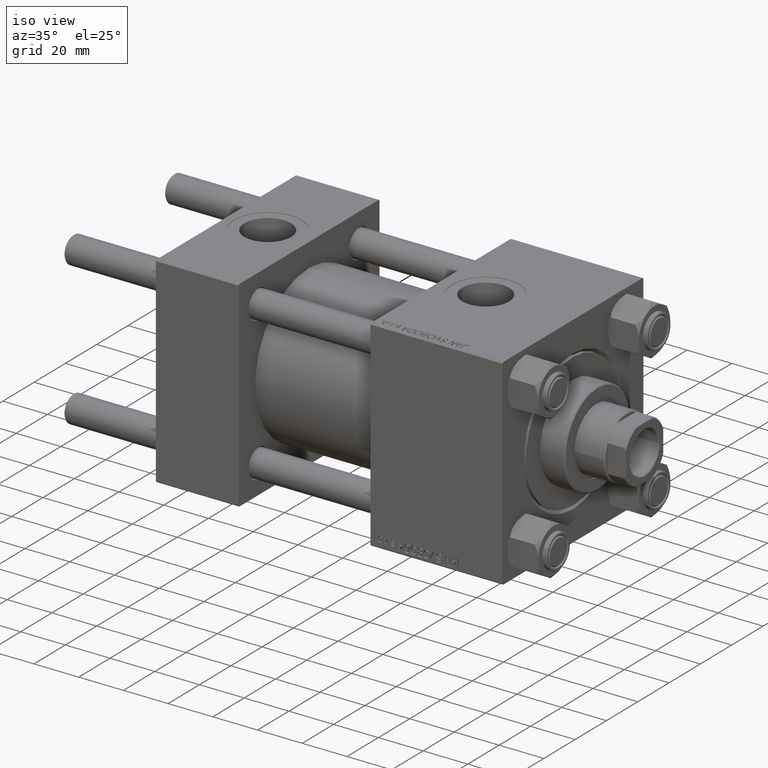
[diagram: clean part render]
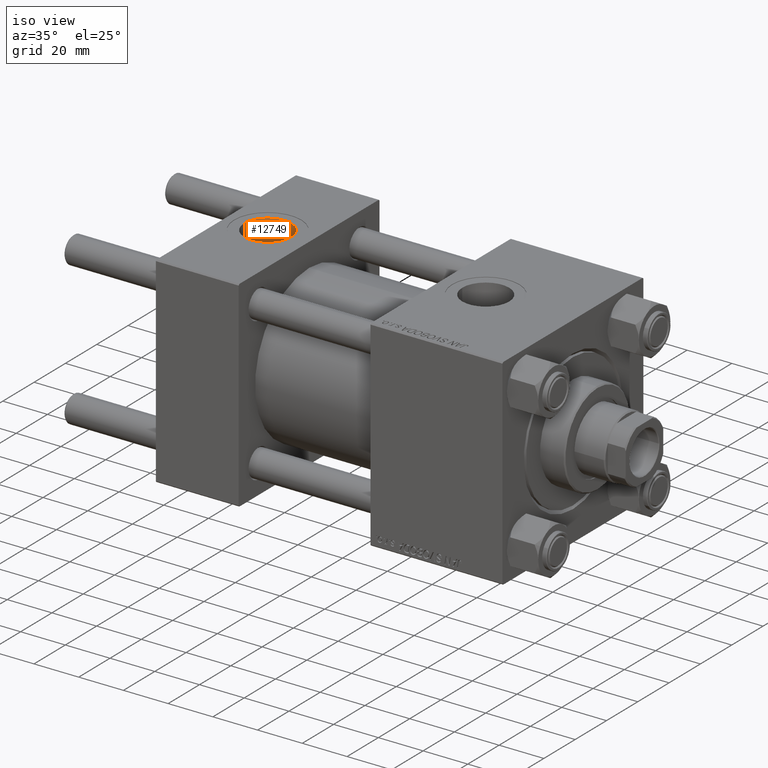
[diagram: same view with one face highlighted and labeled with its STEP entity id]
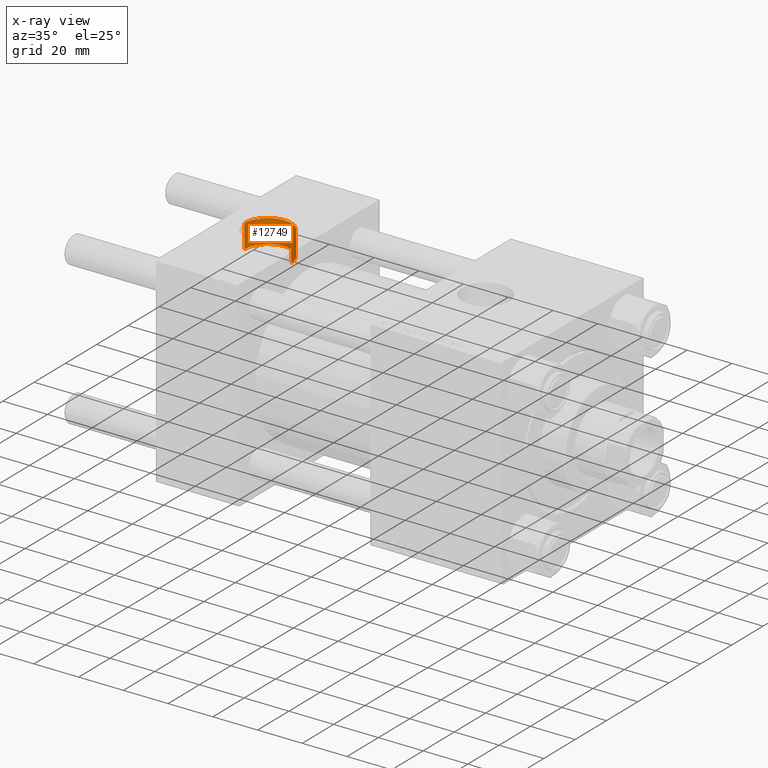
[diagram: x-ray of the same camera — body ghosted, the highlighted face saturated]
A machine part, iso view. The second image highlights one B-rep face of the part: STEP entity #12749.
The next image is the same camera in x-ray: the body ghosted, the highlighted face saturated — about 0% of this face is hidden behind the body in this view.
In plain terms, the highlighted cylindrical surface (edge-blend (fillet) strip) has radius 10.48 mm, axis along (0, 0, 1).
Its self-contained STEP definition (entity closure, byte-faithful):
#894 = VERTEX_POINT ( 'NONE', #6546 ) ;
#1734 = EDGE_CURVE ( 'NONE', #6645, #1927, #3939, .T. ) ;
#1927 = VERTEX_POINT ( 'NONE', #49809 ) ;
#3939 = LINE ( 'NONE', #19927, #47652 ) ;
#4447 = DIRECTION ( 'NONE',  ( -0.000000000000000000, -0.000000000000000000, 1.000000000000000000 ) ) ;
#6145 = CARTESIAN_POINT ( 'NONE',  ( 18.50000000000000000, -8.673617379884038628E-15, 44.80000000000000426 ) ) ;
#6525 = CARTESIAN_POINT ( 'NONE',  ( 28.98000000000000043, -8.673617379884038628E-15, 34.20000000000000995 ) ) ;
#6546 = CARTESIAN_POINT ( 'NONE',  ( 28.98000000000000043, -8.673617379884038628E-15, 44.80000000000000426 ) ) ;
#6645 = VERTEX_POINT ( 'NONE', #18809 ) ;
#6906 = ORIENTED_EDGE ( 'NONE', *, *, #1734, .F. ) ;
#11312 = VERTEX_POINT ( 'NONE', #38656 ) ;
#11593 = EDGE_CURVE ( 'NONE', #11312, #894, #42467, .T. ) ;
#12749 = ADVANCED_FACE ( 'NONE', ( #28891 ), #24434, .F. ) ;
#12906 = DIRECTION ( 'NONE',  ( 1.000000000000000000, 0.000000000000000000, 0.000000000000000000 ) ) ;
#13450 = ORIENTED_EDGE ( 'NONE', *, *, #11593, .T. ) ;
#13616 = DIRECTION ( 'NONE',  ( 1.000000000000000000, 0.000000000000000000, 0.000000000000000000 ) ) ;
#17364 = AXIS2_PLACEMENT_3D ( 'NONE', #33541, #49547, #13616 ) ;
#18809 = CARTESIAN_POINT ( 'NONE',  ( 8.019999999999999574, -7.390187534377611561E-15, 34.20000000000000995 ) ) ;
#19927 = CARTESIAN_POINT ( 'NONE',  ( 8.019999999999999574, -7.390187534377611561E-15, 34.20000000000000995 ) ) ;
#20319 = EDGE_CURVE ( 'NONE', #11312, #6645, #45026, .T. ) ;
#22510 = DIRECTION ( 'NONE',  ( -0.000000000000000000, -0.000000000000000000, 1.000000000000000000 ) ) ;
#22942 = VECTOR ( 'NONE', #22510, 1000.000000000000000 ) ;
#24434 = CYLINDRICAL_SURFACE ( 'NONE', #42249, 10.48000000000000043 ) ;
#28632 = CARTESIAN_POINT ( 'NONE',  ( 18.50000000000000000, -8.673617379884038628E-15, 34.20000000000000995 ) ) ;
#28891 = FACE_OUTER_BOUND ( 'NONE', #30602, .T. ) ;
#29428 = EDGE_CURVE ( 'NONE', #894, #1927, #41325, .T. ) ;
#30412 = AXIS2_PLACEMENT_3D ( 'NONE', #6145, #42339, #38143 ) ;
#30602 = EDGE_LOOP ( 'NONE', ( #6906, #35745, #13450, #42054 ) ) ;
#33541 = CARTESIAN_POINT ( 'NONE',  ( 18.50000000000000000, -8.673617379884038628E-15, 34.20000000000000995 ) ) ;
#35745 = ORIENTED_EDGE ( 'NONE', *, *, #20319, .F. ) ;
#38143 = DIRECTION ( 'NONE',  ( 1.000000000000000000, 0.000000000000000000, 0.000000000000000000 ) ) ;
#38656 = CARTESIAN_POINT ( 'NONE',  ( 28.98000000000000043, -8.673617379884038628E-15, 34.20000000000000995 ) ) ;
#41325 = CIRCLE ( 'NONE', #30412, 10.48000000000000043 ) ;
#42054 = ORIENTED_EDGE ( 'NONE', *, *, #29428, .T. ) ;
#42249 = AXIS2_PLACEMENT_3D ( 'NONE', #28632, #44645, #12906 ) ;
#42339 = DIRECTION ( 'NONE',  ( 0.000000000000000000, 0.000000000000000000, 1.000000000000000000 ) ) ;
#42467 = LINE ( 'NONE', #6525, #22942 ) ;
#44645 = DIRECTION ( 'NONE',  ( -0.000000000000000000, -0.000000000000000000, 1.000000000000000000 ) ) ;
#45026 = CIRCLE ( 'NONE', #17364, 10.48000000000000043 ) ;
#47652 = VECTOR ( 'NONE', #4447, 1000.000000000000000 ) ;
#49547 = DIRECTION ( 'NONE',  ( 0.000000000000000000, 0.000000000000000000, 1.000000000000000000 ) ) ;
#49809 = CARTESIAN_POINT ( 'NONE',  ( 8.019999999999999574, -7.390187534377611561E-15, 44.80000000000000426 ) ) ;